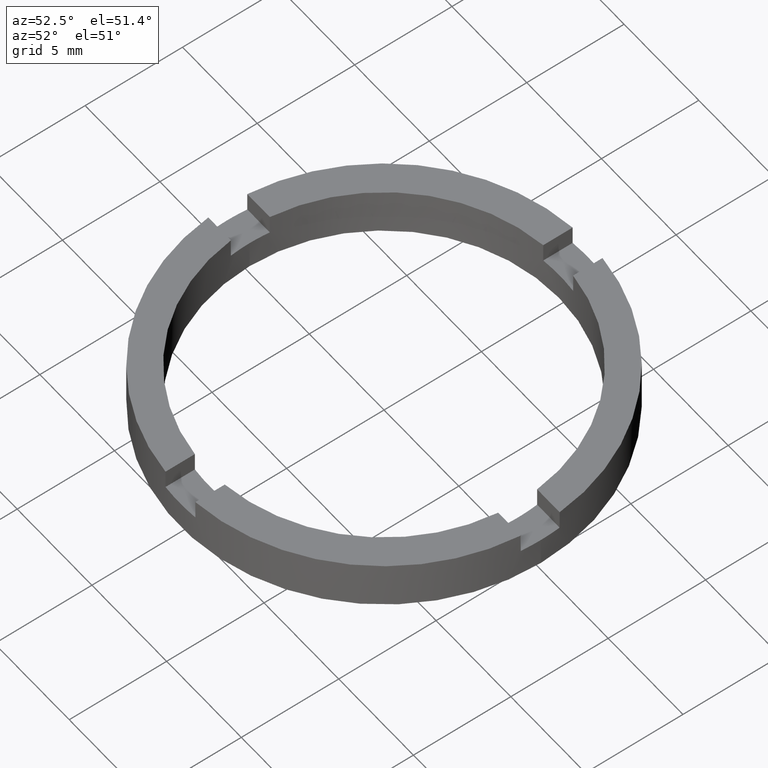
[diagram: clean part render]
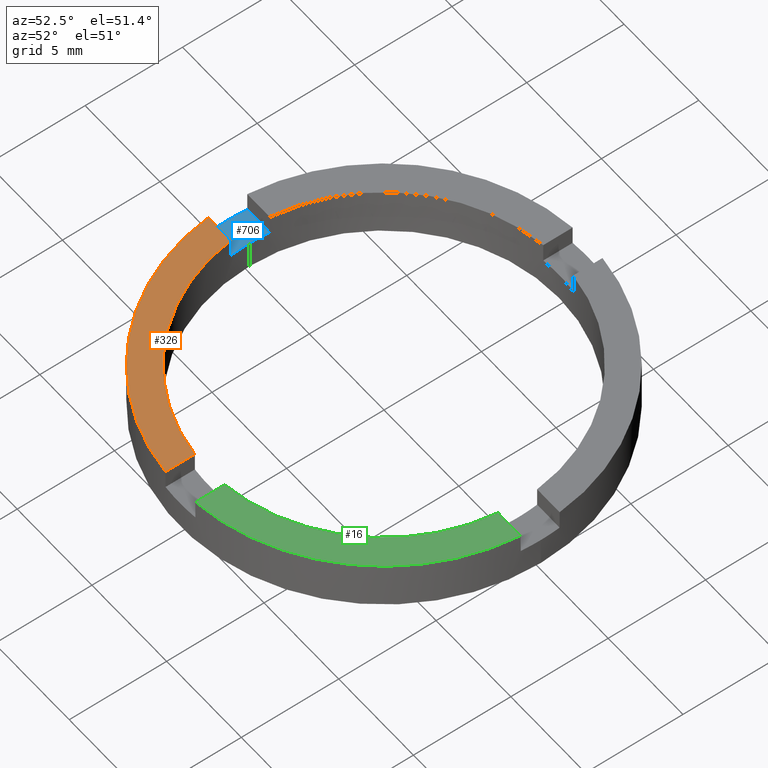
[diagram: same view with three faces highlighted in distinct colors, each labeled with its STEP entity id]
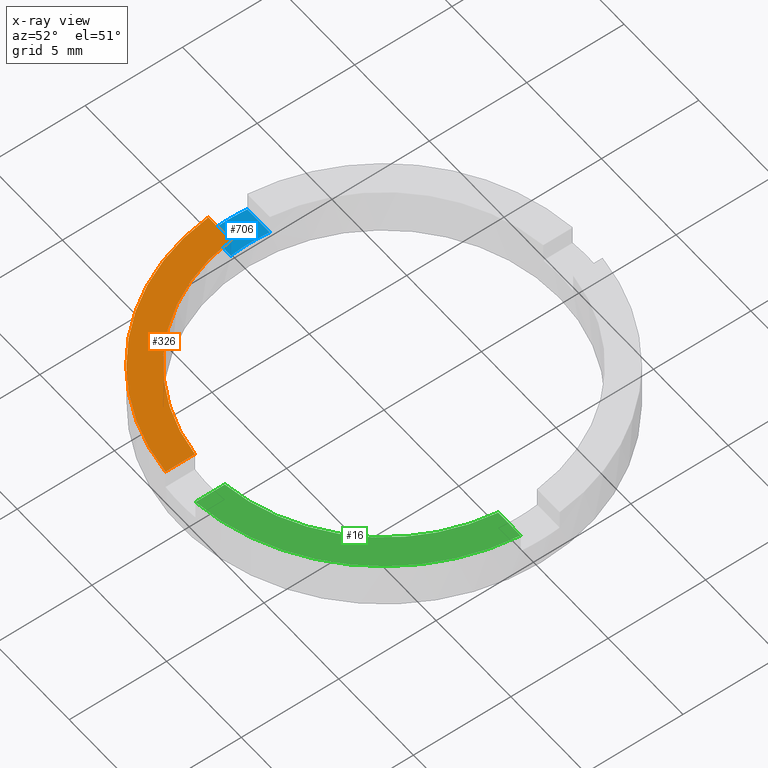
[diagram: x-ray of the same camera — body ghosted, the three highlighted faces saturated]
A machine part, auxiliary view with three faces highlighted in distinct colors.
The next image is the same camera in x-ray (body ghosted, the three faces saturated) — at least one of them is partly hidden behind the body in this view.
Their STEP definitions:

[orange] entity #326 — the highlighted planar face has unit normal (0, 0, 1).
#4 = DIRECTION ( 'NONE',  ( 0.000000000000000000, 0.000000000000000000, 1.000000000000000000 ) ) ;
#20 = CARTESIAN_POINT ( 'NONE',  ( 0.000000000000000000, 0.000000000000000000, 2.500000000000000000 ) ) ;
#33 = VECTOR ( 'NONE', #646, 1000.000000000000000 ) ;
#43 = CARTESIAN_POINT ( 'NONE',  ( -1.000000000000162759, -10.45227248018342259, 2.500000000000000000 ) ) ;
#45 = AXIS2_PLACEMENT_3D ( 'NONE', #198, #4, #617 ) ;
#49 = DIRECTION ( 'NONE',  ( 0.000000000000000000, 0.000000000000000000, 1.000000000000000000 ) ) ;
#76 = DIRECTION ( 'NONE',  ( 1.000000000000000000, 0.000000000000000000, 0.000000000000000000 ) ) ;
#78 = LINE ( 'NONE', #265, #606 ) ;
#86 = CIRCLE ( 'NONE', #264, 8.999999999999998224 ) ;
#107 = EDGE_CURVE ( 'NONE', #702, #199, #86, .T. ) ;
#132 = AXIS2_PLACEMENT_3D ( 'NONE', #20, #725, #556 ) ;
#167 = VERTEX_POINT ( 'NONE', #43 ) ;
#180 = EDGE_LOOP ( 'NONE', ( #692, #190, #696, #690 ) ) ;
#190 = ORIENTED_EDGE ( 'NONE', *, *, #107, .F. ) ;
#198 = CARTESIAN_POINT ( 'NONE',  ( 0.000000000000000000, 0.000000000000000000, 2.500000000000000000 ) ) ;
#199 = VERTEX_POINT ( 'NONE', #322 ) ;
#208 = CARTESIAN_POINT ( 'NONE',  ( -0.9999999999999592548, -3.500000000000003109, 2.500000000000000000 ) ) ;
#222 = CARTESIAN_POINT ( 'NONE',  ( 0.000000000000000000, 0.000000000000000000, 2.500000000000000000 ) ) ;
#244 = EDGE_CURVE ( 'NONE', #448, #702, #78, .T. ) ;
#264 = AXIS2_PLACEMENT_3D ( 'NONE', #222, #49, #76 ) ;
#265 = CARTESIAN_POINT ( 'NONE',  ( -3.500000000000001332, -1.000000000000039746, 2.500000000000000000 ) ) ;
#291 = EDGE_CURVE ( 'NONE', #199, #167, #297, .T. ) ;
#297 = LINE ( 'NONE', #208, #33 ) ;
#322 = CARTESIAN_POINT ( 'NONE',  ( -1.000000000000118572, -8.944271909999143233, 2.500000000000000000 ) ) ;
#326 = ADVANCED_FACE ( 'NONE', ( #782 ), #586, .T. ) ;
#327 = DIRECTION ( 'NONE',  ( 1.000000000000000000, -2.571108009036985474E-15, -0.000000000000000000 ) ) ;
#448 = VERTEX_POINT ( 'NONE', #573 ) ;
#556 = DIRECTION ( 'NONE',  ( 1.000000000000000000, 0.000000000000000000, -0.000000000000000000 ) ) ;
#559 = CARTESIAN_POINT ( 'NONE',  ( -8.944271909999152115, -1.000000000000025535, 2.500000000000000000 ) ) ;
#573 = CARTESIAN_POINT ( 'NONE',  ( -10.45227248018343680, -1.000000000000021760, 2.500000000000000000 ) ) ;
#586 = PLANE ( 'NONE',  #132 ) ;
#595 = EDGE_CURVE ( 'NONE', #448, #167, #766, .T. ) ;
#606 = VECTOR ( 'NONE', #327, 1000.000000000000000 ) ;
#617 = DIRECTION ( 'NONE',  ( 1.000000000000000000, 0.000000000000000000, 0.000000000000000000 ) ) ;
#646 = DIRECTION ( 'NONE',  ( -2.927345865710786872E-14, -1.000000000000000000, 0.000000000000000000 ) ) ;
#690 = ORIENTED_EDGE ( 'NONE', *, *, #595, .T. ) ;
#692 = ORIENTED_EDGE ( 'NONE', *, *, #291, .F. ) ;
#696 = ORIENTED_EDGE ( 'NONE', *, *, #244, .F. ) ;
#702 = VERTEX_POINT ( 'NONE', #559 ) ;
#725 = DIRECTION ( 'NONE',  ( 0.000000000000000000, 0.000000000000000000, 1.000000000000000000 ) ) ;
#766 = CIRCLE ( 'NONE', #45, 10.50000000000000178 ) ;
#782 = FACE_OUTER_BOUND ( 'NONE', #180, .T. ) ;

[blue] entity #706 — the highlighted planar face has unit normal (0, 0, 1).
#9 = CARTESIAN_POINT ( 'NONE',  ( 0.000000000000000000, 0.000000000000000000, 1.500000000000000000 ) ) ;
#11 = FACE_OUTER_BOUND ( 'NONE', #185, .T. ) ;
#18 = CARTESIAN_POINT ( 'NONE',  ( 0.000000000000000000, 0.000000000000000000, 1.500000000000000000 ) ) ;
#27 = DIRECTION ( 'NONE',  ( 1.000000000000000000, 0.000000000000000000, 0.000000000000000000 ) ) ;
#44 = PLANE ( 'NONE',  #237 ) ;
#53 = CARTESIAN_POINT ( 'NONE',  ( 0.000000000000000000, 0.000000000000000000, 1.500000000000000000 ) ) ;
#68 = AXIS2_PLACEMENT_3D ( 'NONE', #563, #594, #27 ) ;
#71 = AXIS2_PLACEMENT_3D ( 'NONE', #18, #699, #304 ) ;
#72 = CARTESIAN_POINT ( 'NONE',  ( -3.500000000000001332, -1.000000000000039746, 1.500000000000000000 ) ) ;
#148 = AXIS2_PLACEMENT_3D ( 'NONE', #9, #298, #179 ) ;
#177 = VERTEX_POINT ( 'NONE', #565 ) ;
#179 = DIRECTION ( 'NONE',  ( 1.000000000000000000, 0.000000000000000000, 0.000000000000000000 ) ) ;
#185 = EDGE_LOOP ( 'NONE', ( #665, #414, #708, #676, #712, #662 ) ) ;
#210 = DIRECTION ( 'NONE',  ( 1.000000000000000000, 0.000000000000000000, -0.000000000000000000 ) ) ;
#219 = VERTEX_POINT ( 'NONE', #520 ) ;
#234 = CIRCLE ( 'NONE', #71, 10.50000000000000178 ) ;
#237 = AXIS2_PLACEMENT_3D ( 'NONE', #545, #576, #210 ) ;
#248 = CIRCLE ( 'NONE', #148, 8.999999999999998224 ) ;
#276 = CIRCLE ( 'NONE', #68, 8.999999999999998224 ) ;
#286 = EDGE_CURVE ( 'NONE', #641, #647, #345, .T. ) ;
#298 = DIRECTION ( 'NONE',  ( 0.000000000000000000, 0.000000000000000000, 1.000000000000000000 ) ) ;
#304 = DIRECTION ( 'NONE',  ( 1.000000000000000000, 0.000000000000000000, 0.000000000000000000 ) ) ;
#309 = CARTESIAN_POINT ( 'NONE',  ( -8.944271909999152115, -1.000000000000025535, 1.500000000000000000 ) ) ;
#328 = AXIS2_PLACEMENT_3D ( 'NONE', #53, #616, #575 ) ;
#337 = CARTESIAN_POINT ( 'NONE',  ( -3.500000000000002220, 0.9999999999999603650, 1.500000000000000000 ) ) ;
#345 = LINE ( 'NONE', #72, #607 ) ;
#357 = CARTESIAN_POINT ( 'NONE',  ( -8.999999999999998224, 0.000000000000000000, 1.500000000000000000 ) ) ;
#368 = DIRECTION ( 'NONE',  ( 1.000000000000000000, -2.571108009036985474E-15, -0.000000000000000000 ) ) ;
#390 = DIRECTION ( 'NONE',  ( -1.000000000000000000, 2.571108009036985868E-15, 0.000000000000000000 ) ) ;
#409 = VERTEX_POINT ( 'NONE', #357 ) ;
#414 = ORIENTED_EDGE ( 'NONE', *, *, #540, .T. ) ;
#461 = EDGE_CURVE ( 'NONE', #642, #219, #527, .T. ) ;
#505 = VECTOR ( 'NONE', #390, 1000.000000000000000 ) ;
#520 = CARTESIAN_POINT ( 'NONE',  ( -10.50000000000000178, 0.000000000000000000, 1.500000000000000000 ) ) ;
#527 = CIRCLE ( 'NONE', #328, 10.50000000000000178 ) ;
#529 = EDGE_CURVE ( 'NONE', #177, #642, #783, .T. ) ;
#540 = EDGE_CURVE ( 'NONE', #219, #641, #234, .T. ) ;
#545 = CARTESIAN_POINT ( 'NONE',  ( 0.000000000000000000, 0.000000000000000000, 1.500000000000000000 ) ) ;
#546 = CARTESIAN_POINT ( 'NONE',  ( -10.45227248018343680, -1.000000000000021760, 1.500000000000000000 ) ) ;
#563 = CARTESIAN_POINT ( 'NONE',  ( 0.000000000000000000, 0.000000000000000000, 1.500000000000000000 ) ) ;
#565 = CARTESIAN_POINT ( 'NONE',  ( -8.944271909999160997, 0.9999999999999744649, 1.500000000000000000 ) ) ;
#566 = EDGE_CURVE ( 'NONE', #409, #647, #248, .T. ) ;
#575 = DIRECTION ( 'NONE',  ( 1.000000000000000000, 0.000000000000000000, 0.000000000000000000 ) ) ;
#576 = DIRECTION ( 'NONE',  ( 0.000000000000000000, 0.000000000000000000, 1.000000000000000000 ) ) ;
#579 = CARTESIAN_POINT ( 'NONE',  ( -10.45227248018344213, 0.9999999999999783507, 1.500000000000000000 ) ) ;
#594 = DIRECTION ( 'NONE',  ( 0.000000000000000000, 0.000000000000000000, 1.000000000000000000 ) ) ;
#607 = VECTOR ( 'NONE', #368, 1000.000000000000000 ) ;
#616 = DIRECTION ( 'NONE',  ( 0.000000000000000000, 0.000000000000000000, 1.000000000000000000 ) ) ;
#641 = VERTEX_POINT ( 'NONE', #546 ) ;
#642 = VERTEX_POINT ( 'NONE', #579 ) ;
#647 = VERTEX_POINT ( 'NONE', #309 ) ;
#662 = ORIENTED_EDGE ( 'NONE', *, *, #529, .T. ) ;
#665 = ORIENTED_EDGE ( 'NONE', *, *, #461, .T. ) ;
#676 = ORIENTED_EDGE ( 'NONE', *, *, #566, .F. ) ;
#699 = DIRECTION ( 'NONE',  ( 0.000000000000000000, 0.000000000000000000, 1.000000000000000000 ) ) ;
#706 = ADVANCED_FACE ( 'NONE', ( #11 ), #44, .T. ) ;
#708 = ORIENTED_EDGE ( 'NONE', *, *, #286, .T. ) ;
#712 = ORIENTED_EDGE ( 'NONE', *, *, #768, .F. ) ;
#768 = EDGE_CURVE ( 'NONE', #177, #409, #276, .T. ) ;
#783 = LINE ( 'NONE', #337, #505 ) ;

[green] entity #16 — the highlighted planar face has unit normal (0, 0, 1).
#14 = DIRECTION ( 'NONE',  ( 0.000000000000000000, 0.000000000000000000, 1.000000000000000000 ) ) ;
#16 = ADVANCED_FACE ( 'NONE', ( #371 ), #47, .T. ) ;
#24 = CARTESIAN_POINT ( 'NONE',  ( 3.500000000000004441, -0.9999999999999608091, 2.500000000000000000 ) ) ;
#47 = PLANE ( 'NONE',  #571 ) ;
#70 = CARTESIAN_POINT ( 'NONE',  ( 1.000000000000040856, -3.500000000000003109, 2.500000000000000000 ) ) ;
#95 = CARTESIAN_POINT ( 'NONE',  ( 0.000000000000000000, 0.000000000000000000, 2.500000000000000000 ) ) ;
#110 = DIRECTION ( 'NONE',  ( 1.000000000000000000, 0.000000000000000000, -0.000000000000000000 ) ) ;
#128 = DIRECTION ( 'NONE',  ( 2.927345865710786872E-14, 1.000000000000000000, -0.000000000000000000 ) ) ;
#147 = VERTEX_POINT ( 'NONE', #780 ) ;
#153 = VERTEX_POINT ( 'NONE', #369 ) ;
#165 = EDGE_LOOP ( 'NONE', ( #440, #182, #700, #650 ) ) ;
#182 = ORIENTED_EDGE ( 'NONE', *, *, #697, .F. ) ;
#254 = CARTESIAN_POINT ( 'NONE',  ( 0.9999999999998371303, -10.45227248018345456, 2.500000000000000000 ) ) ;
#267 = CARTESIAN_POINT ( 'NONE',  ( 8.944271909999143233, -1.000000000000116129, 2.500000000000000000 ) ) ;
#270 = CIRCLE ( 'NONE', #300, 10.50000000000000178 ) ;
#271 = CIRCLE ( 'NONE', #668, 8.999999999999998224 ) ;
#273 = CARTESIAN_POINT ( 'NONE',  ( 0.000000000000000000, 0.000000000000000000, 2.500000000000000000 ) ) ;
#279 = VECTOR ( 'NONE', #128, 1000.000000000000000 ) ;
#282 = LINE ( 'NONE', #70, #279 ) ;
#300 = AXIS2_PLACEMENT_3D ( 'NONE', #273, #649, #324 ) ;
#320 = CARTESIAN_POINT ( 'NONE',  ( 0.000000000000000000, 0.000000000000000000, 2.500000000000000000 ) ) ;
#324 = DIRECTION ( 'NONE',  ( 1.000000000000000000, 0.000000000000000000, 0.000000000000000000 ) ) ;
#358 = DIRECTION ( 'NONE',  ( 1.000000000000000000, 0.000000000000000000, 0.000000000000000000 ) ) ;
#369 = CARTESIAN_POINT ( 'NONE',  ( 0.9999999999998814282, -8.944271909999169878, 2.500000000000000000 ) ) ;
#371 = FACE_OUTER_BOUND ( 'NONE', #165, .T. ) ;
#394 = DIRECTION ( 'NONE',  ( 0.000000000000000000, 0.000000000000000000, 1.000000000000000000 ) ) ;
#440 = ORIENTED_EDGE ( 'NONE', *, *, #731, .F. ) ;
#536 = LINE ( 'NONE', #24, #538 ) ;
#538 = VECTOR ( 'NONE', #745, 1000.000000000000000 ) ;
#571 = AXIS2_PLACEMENT_3D ( 'NONE', #95, #14, #110 ) ;
#649 = DIRECTION ( 'NONE',  ( 0.000000000000000000, 0.000000000000000000, 1.000000000000000000 ) ) ;
#650 = ORIENTED_EDGE ( 'NONE', *, *, #720, .T. ) ;
#664 = VERTEX_POINT ( 'NONE', #254 ) ;
#668 = AXIS2_PLACEMENT_3D ( 'NONE', #320, #394, #358 ) ;
#683 = VERTEX_POINT ( 'NONE', #267 ) ;
#697 = EDGE_CURVE ( 'NONE', #153, #683, #271, .T. ) ;
#700 = ORIENTED_EDGE ( 'NONE', *, *, #777, .F. ) ;
#720 = EDGE_CURVE ( 'NONE', #664, #147, #270, .T. ) ;
#731 = EDGE_CURVE ( 'NONE', #683, #147, #536, .T. ) ;
#745 = DIRECTION ( 'NONE',  ( 1.000000000000000000, -2.849902853390471142E-14, 0.000000000000000000 ) ) ;
#777 = EDGE_CURVE ( 'NONE', #664, #153, #282, .T. ) ;
#780 = CARTESIAN_POINT ( 'NONE',  ( 10.45227248018342436, -1.000000000000158984, 2.500000000000000000 ) ) ;